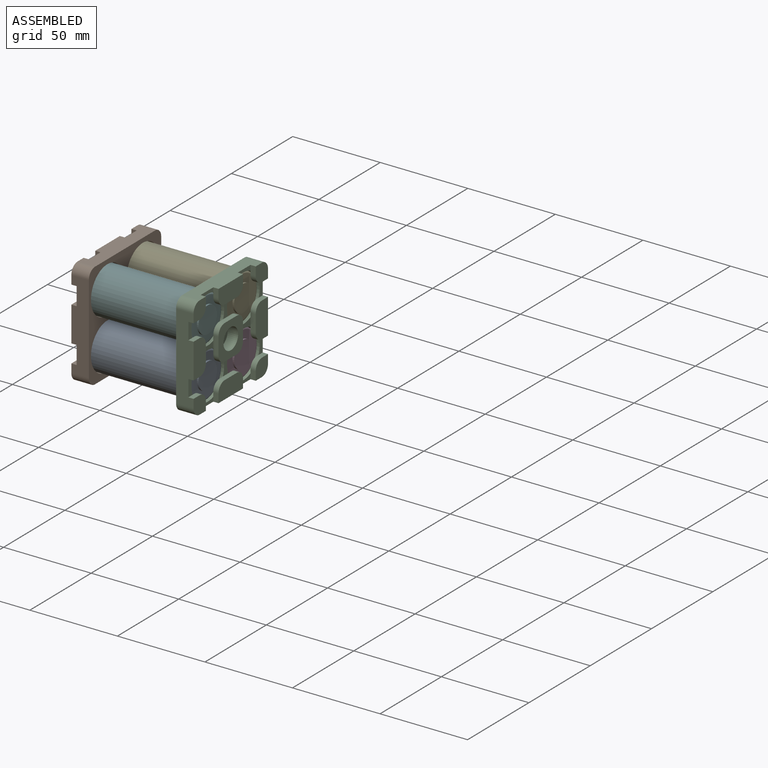
[diagram: assembled view]
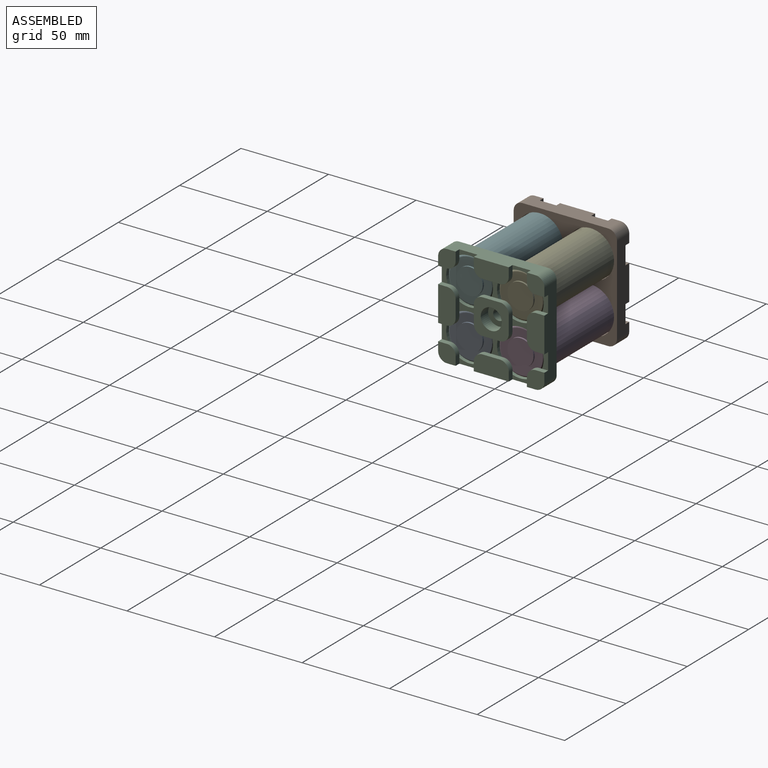
[diagram: assembled view, second angle]
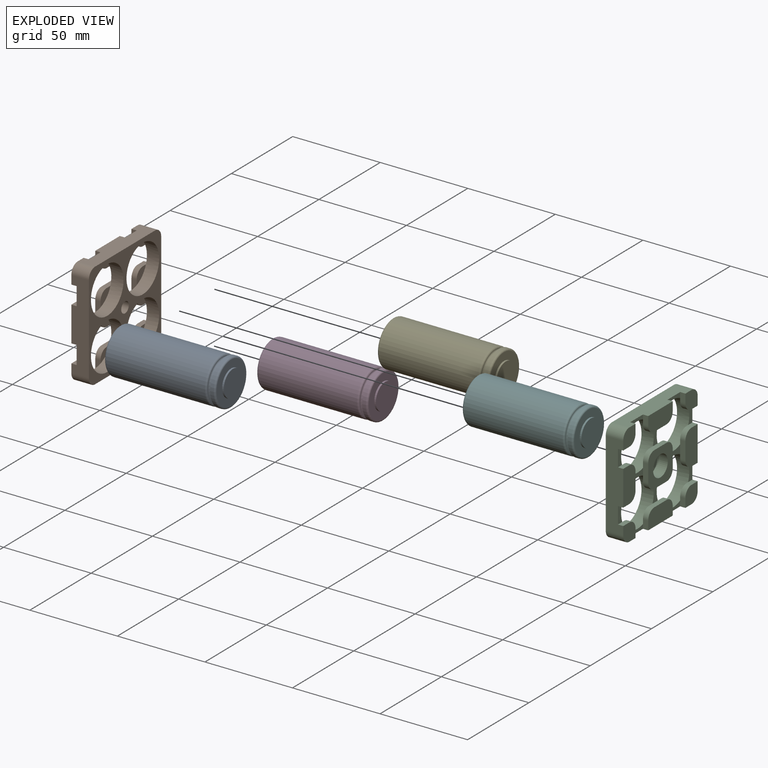
[diagram: exploded view]
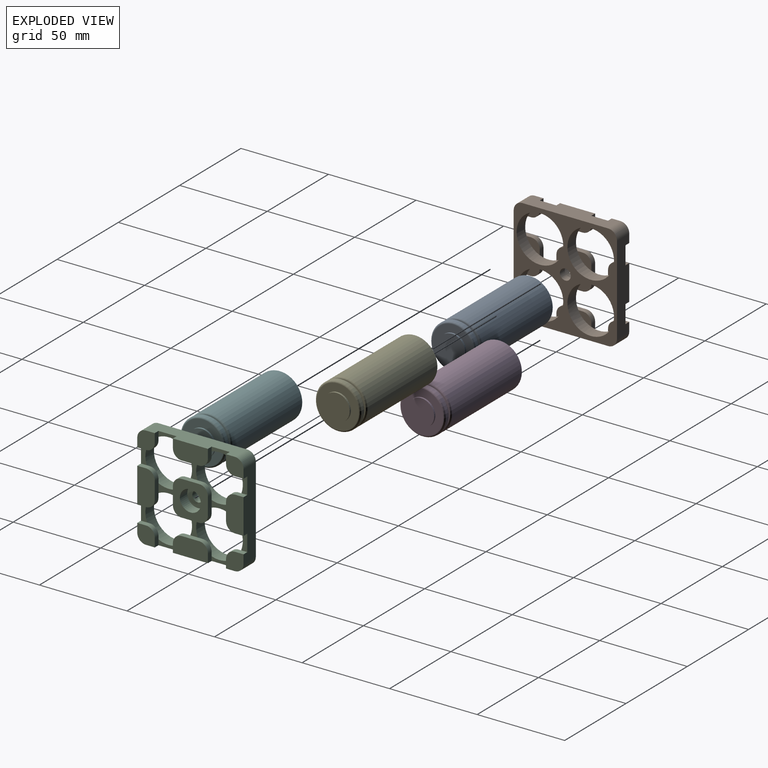
[diagram: exploded view, second angle]
ASSEMBLY  parts=6 mates=5
PART A: 11 faces, bbox 64.4x28.1x28.1 mm
  f0: torus R=11.97mm, axis (-1,0,0), area 223.8mm2, adj f1,f10
  f1: plane 25.95x25.95mm, normal (1,0,0), area 78.4mm2, adj f0,f2
  f2: cylinder r=12.97mm len=25.95mm, axis (-1,0,0), area 163mm2, adj f1,f3
  f3: torus R=11.97mm, axis (-1,0,0), area 124.5mm2, adj f2,f4
  f4: plane 23.95x23.95mm, normal (-1,0,0), area 273.8mm2, adj f3,f5
  f5: cylinder r=7.5mm len=15mm, axis (-1,0,0), area 47.1mm2, adj f4,f6
  f6: plane 15x15mm, normal (-1,0,0), area 176.7mm2, adj f5
  f7: plane 23.95x23.95mm, normal (1,0,0), area 450.5mm2, adj f8
  f8: torus R=11.97mm, axis (-1,0,0), area 124.5mm2, adj f7,f9
  f9: cylinder r=12.97mm len=56.4mm, axis (-1,0,0), area 4598mm2, adj f8,f10
  f10: torus R=11.97mm, axis (-1,0,0), area 124.5mm2, adj f0,f9
PART B: 93 faces, bbox 59x60.7x10 mm
  f0: cylinder r=3.1mm len=6.2mm, axis (0,0,1), area 77.9mm2, adj f21,f91
  f1: plane 9.5x4.3mm, normal (0,0,-1), area 27.8mm2, adj f16,f19,f47,f66
  f2: plane 10.35x5.06mm, normal (0,0,-1), area 31.8mm2, adj f16,f17,f60,f67
  f3: plane 10.35x5.06mm, normal (0,0,-1), area 31.8mm2, adj f18,f19,f41,f69
  f4: plane 9.5x3.5mm, normal (0,0,-1), area 26.8mm2, adj f13,f16,f23,f58
  f5: plane 9.5x3.5mm, normal (0,0,-1), area 26.8mm2, adj f13,f17,f28,f59
  f6: plane 9.5x4.3mm, normal (0,0,-1), area 27.8mm2, adj f17,f18,f52,f68
  f7: plane 10.35x3.03mm, normal (0,0,-1), area 21.1mm2, adj f14,f17,f27,f53
  f8: plane 10.35x3.03mm, normal (0,0,-1), area 21.1mm2, adj f16,f20,f22,f46
  f9: plane 10.35x3.03mm, normal (0,0,-1), area 21.1mm2, adj f19,f20,f35,f48
  f10: plane 10.35x3.03mm, normal (0,0,-1), area 21.1mm2, adj f14,f18,f31,f54
  f11: plane 9.5x3.5mm, normal (0,0,-1), area 26.8mm2, adj f15,f18,f32,f42
  f12: plane 9.5x3.5mm, normal (0,0,-1), area 26.8mm2, adj f15,f19,f36,f40
  f13: plane 49x10mm, normal (0,1,0), area 433mm2, adj f4,f5,f21,f23,f24,f28,f29,f58
  f14: plane 50.71x10mm, normal (-1,0,0), area 444.9mm2, adj f7,f10,f21,f27,f29,f31,f33,f53
  f15: plane 49x10mm, normal (0,-1,0), area 433mm2, adj f11,f12,f21,f32,f33,f36,f37,f40
  f16: cylinder r=13.32mm len=26.65mm, axis (0,0,-1), area 586.1mm2, adj f1,f2,f4,f8,f21,f25,f44,f57
  f17: cylinder r=13.32mm len=26.65mm, axis (0,0,-1), area 586.1mm2, adj f2,f5,f6,f7,f21,f26,f51,f56
  f18: cylinder r=13.32mm len=26.65mm, axis (0,0,-1), area 586.1mm2, adj f3,f6,f10,f11,f21,f30,f39,f50
  f19: cylinder r=13.32mm len=26.65mm, axis (0,0,-1), area 586.1mm2, adj f1,f3,f9,f12,f21,f34,f38,f45
  f20: plane 50.71x10mm, normal (1,0,0), area 444.9mm2, adj f8,f9,f21,f22,f24,f35,f37,f46
  f21: plane 60.71x59mm, normal (0,0,1), area 1298.8mm2, adj f0,f13,f14,f15,f16,f17,f18,f19
  f22: plane 5x3mm, normal (0,-1,0), area 15mm2, adj f8,f20,f24,f25,f86
  f23: plane 5x3mm, normal (-1,0,0), area 15mm2, adj f4,f13,f24,f25,f86
  f24: plane 10x10mm, normal (0,0,-1), area 89.3mm2, adj f13,f20,f22,f23,f86,f90
  f25: plane 6.97x6.5mm, normal (0,0,1), area 22.9mm2, adj f16,f22,f23,f86
  f26: plane 6.97x6.5mm, normal (0,0,1), area 22.9mm2, adj f17,f27,f28,f85
  f27: plane 5x3mm, normal (0,-1,0), area 15mm2, adj f7,f14,f26,f29,f85
  f28: plane 5x3mm, normal (1,0,0), area 15mm2, adj f5,f13,f26,f29,f85
  f29: plane 10x10mm, normal (0,0,-1), area 89.3mm2, adj f13,f14,f27,f28,f85,f87
  f30: plane 6.97x6.5mm, normal (0,0,1), area 22.9mm2, adj f18,f31,f32,f84
  f31: plane 5x3mm, normal (0,1,0), area 15mm2, adj f10,f14,f30,f33,f84
  f32: plane 5x3mm, normal (1,0,0), area 15mm2, adj f11,f15,f30,f33,f84
  f33: plane 10x10mm, normal (0,0,-1), area 89.3mm2, adj f14,f15,f31,f32,f84,f88
  f34: plane 6.97x6.5mm, normal (0,0,1), area 22.9mm2, adj f19,f35,f36,f83
  f35: plane 5x3mm, normal (0,1,0), area 15mm2, adj f9,f20,f34,f37,f83
  f36: plane 5x3mm, normal (-1,0,0), area 15mm2, adj f12,f15,f34,f37,f83
  f37: plane 10x10mm, normal (0,0,-1), area 89.3mm2, adj f15,f20,f35,f36,f83,f89
  f38: plane 7.47x6.69mm, normal (0,0,1), area 26.2mm2, adj f19,f40,f41,f77
  f39: plane 7.47x6.69mm, normal (0,0,1), area 26.2mm2, adj f18,f41,f42,f78
  f40: plane 5x3mm, normal (1,0,0), area 15mm2, adj f12,f15,f38,f43,f77
  f41: plane 10x3mm, normal (0,1,0), area 30mm2, adj f3,f38,f39,f43,f77,f78
  f42: plane 5x3mm, normal (-1,0,0), area 15mm2, adj f11,f15,f39,f43,f78
  f43: plane 20x10mm, normal (0,0,-1), area 189.3mm2, adj f15,f40,f41,f42,f77,f78
  f44: plane 7.85x7.54mm, normal (0,0,1), area 32.8mm2, adj f16,f46,f47,f76
  f45: plane 7.85x7.54mm, normal (0,0,1), area 32.8mm2, adj f19,f47,f48,f75
  f46: plane 5x3mm, normal (0,1,0), area 15mm2, adj f8,f20,f44,f49,f76
  f47: plane 10x3mm, normal (-1,0,0), area 30mm2, adj f1,f44,f45,f49,f75,f76
  f48: plane 5x3mm, normal (0,-1,0), area 15mm2, adj f9,f20,f45,f49,f75
  f49: plane 20x10mm, normal (0,0,-1), area 189.3mm2, adj f20,f46,f47,f48,f75,f76
  f50: plane 7.85x7.54mm, normal (0,0,1), area 32.8mm2, adj f18,f52,f54,f73
  f51: plane 7.85x7.54mm, normal (0,0,1), area 32.8mm2, adj f17,f52,f53,f74
  f52: plane 10x3mm, normal (1,0,0), area 30mm2, adj f6,f50,f51,f55,f73,f74
  f53: plane 5x3mm, normal (0,1,0), area 15mm2, adj f7,f14,f51,f55,f74
  f54: plane 5x3mm, normal (0,-1,0), area 15mm2, adj f10,f14,f50,f55,f73
  f55: plane 20x10mm, normal (0,0,-1), area 189.3mm2, adj f14,f52,f53,f54,f73,f74
  f56: plane 7.47x6.69mm, normal (0,0,1), area 26.2mm2, adj f17,f59,f60,f72
  f57: plane 7.47x6.69mm, normal (0,0,1), area 26.2mm2, adj f16,f58,f60,f71
  f58: plane 5x3mm, normal (1,0,0), area 15mm2, adj f4,f13,f57,f61,f71
  f59: plane 5x3mm, normal (-1,0,0), area 15mm2, adj f5,f13,f56,f61,f72
  f60: plane 10x3mm, normal (0,-1,0), area 30mm2, adj f2,f56,f57,f61,f71,f72
  f61: plane 20x10mm, normal (0,0,-1), area 189.3mm2, adj f13,f58,f59,f60,f71,f72
  f62: plane 8.04x8.04mm, normal (0,0,1), area 36.7mm2, adj f17,f67,f68,f80
  f63: plane 8.04x8.04mm, normal (0,0,1), area 36.7mm2, adj f16,f66,f67,f79
  f64: plane 8.04x8.04mm, normal (0,0,1), area 36.7mm2, adj f19,f66,f69,f82
  f65: plane 8.04x8.04mm, normal (0,0,1), area 36.7mm2, adj f18,f68,f69,f81
  f66: plane 10x3mm, normal (1,0,0), area 30mm2, adj f1,f63,f64,f70,f79,f82
  f67: plane 10x3mm, normal (0,1,0), area 30mm2, adj f2,f62,f63,f70,f79,f80
  f68: plane 10x3mm, normal (-1,0,0), area 30mm2, adj f6,f62,f65,f70,f80,f81
  f69: plane 10x3mm, normal (0,-1,0), area 30mm2, adj f3,f64,f65,f70,f81,f82
  f70: plane 20x20mm, normal (0,0,-1), area 265.4mm2, adj f66,f67,f68,f69,f79,f80,f81,f82
  f71: cylinder r=5mm len=5mm, axis (0,0,-1), area 23.6mm2, adj f57,f58,f60,f61
  f72: cylinder r=5mm len=5mm, axis (0,0,1), area 23.6mm2, adj f56,f59,f60,f61
  f73: cylinder r=5mm len=5mm, axis (0,0,-1), area 23.6mm2, adj f50,f52,f54,f55
  f74: cylinder r=5mm len=5mm, axis (0,0,1), area 23.6mm2, adj f51,f52,f53,f55
  f75: cylinder r=5mm len=5mm, axis (0,0,-1), area 23.6mm2, adj f45,f47,f48,f49
  f76: cylinder r=5mm len=5mm, axis (0,0,1), area 23.6mm2, adj f44,f46,f47,f49
  f77: cylinder r=5mm len=5mm, axis (0,0,-1), area 23.6mm2, adj f38,f40,f41,f43
  f78: cylinder r=5mm len=5mm, axis (0,0,1), area 23.6mm2, adj f39,f41,f42,f43
  f79: cylinder r=5mm len=5mm, axis (0,0,-1), area 23.6mm2, adj f63,f66,f67,f70
  f80: cylinder r=5mm len=5mm, axis (0,0,1), area 23.6mm2, adj f62,f67,f68,f70
  f81: cylinder r=5mm len=5mm, axis (0,0,-1), area 23.6mm2, adj f65,f68,f69,f70
  f82: cylinder r=5mm len=5mm, axis (0,0,1), area 23.6mm2, adj f64,f66,f69,f70
  f83: cylinder r=5mm len=5mm, axis (0,0,-1), area 23.6mm2, adj f34,f35,f36,f37
  f84: cylinder r=5mm len=5mm, axis (0,0,-1), area 23.6mm2, adj f30,f31,f32,f33
  f85: cylinder r=5mm len=5mm, axis (0,0,-1), area 23.6mm2, adj f26,f27,f28,f29
  f86: cylinder r=5mm len=5mm, axis (0,0,-1), area 23.6mm2, adj f22,f23,f24,f25
  f87: cylinder r=5mm len=10mm, axis (0,0,-1), area 78.5mm2, adj f13,f14,f21,f29
  f88: cylinder r=5mm len=10mm, axis (0,0,1), area 78.5mm2, adj f14,f15,f21,f33
  f89: cylinder r=5mm len=10mm, axis (0,0,-1), area 78.5mm2, adj f15,f20,f21,f37
  f90: cylinder r=5mm len=10mm, axis (0,0,1), area 78.5mm2, adj f13,f20,f21,f24
  f91: plane 12x12mm, normal (0,0,-1), area 82.9mm2, adj f0,f92
  f92: cylinder r=6mm len=12mm, axis (0,0,-1), area 226.2mm2, adj f70,f91
PART C: same geometry as B
PART D: same geometry as A
PART E: same geometry as A
PART F: same geometry as A
PLACE A rot(axis=(0,0.71,-0.71),180deg) t=(70.94,-20.65,-36.14)mm
PLACE B rot(axis=(0.58,0.58,0.58),120deg) t=(26.63,-6.15,-21.64)mm
PLACE C rot(axis=(0.71,0,-0.71),180deg) t=(91.03,-6.15,-21.64)mm
PLACE D rot(axis=(0,0.71,-0.71),180deg) t=(70.94,8.35,-36.14)mm
PLACE E rot(axis=(0,0,-1),180deg) t=(70.94,8.35,-7.14)mm
PLACE F rot(axis=(0,0.71,0.71),180deg) t=(70.94,-20.65,-7.14)mm
MATE fastened D.f0 <-> B.f19  axis (-1,0,0) through (26.63,8.35,-36.14)mm
MATE fastened C.f18 <-> E.f0  axis (1,0,0) through (91.03,8.35,-7.14)mm
MATE fastened A.f0 <-> B.f18  axis (-1,0,0) through (26.63,-20.65,-36.14)mm
MATE fastened E.f0 <-> B.f16  axis (-1,0,0) through (26.63,8.35,-7.14)mm
MATE fastened F.f0 <-> B.f17  axis (-1,0,0) through (26.63,-20.65,-7.14)mm
